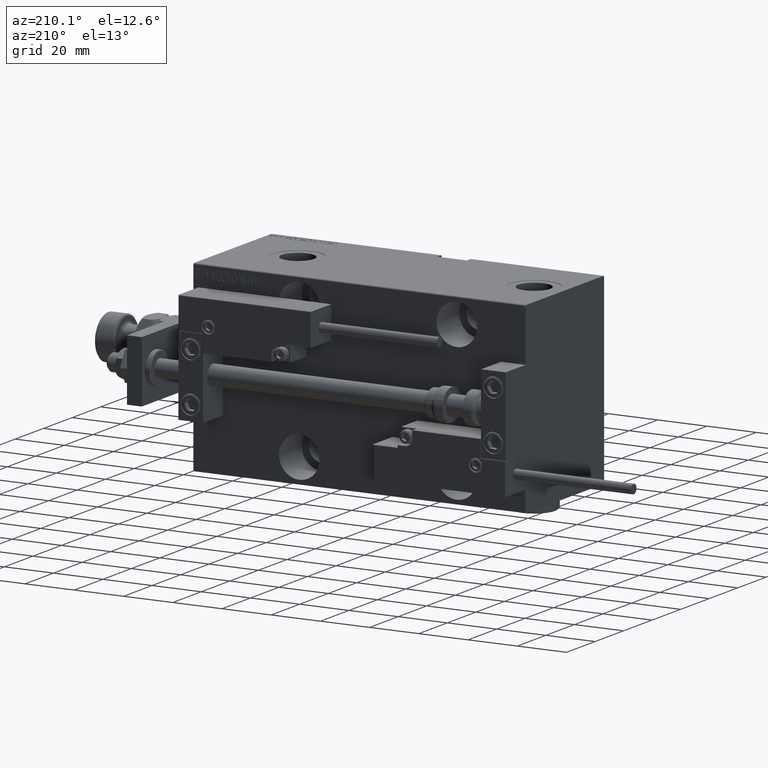
[diagram: clean part render]
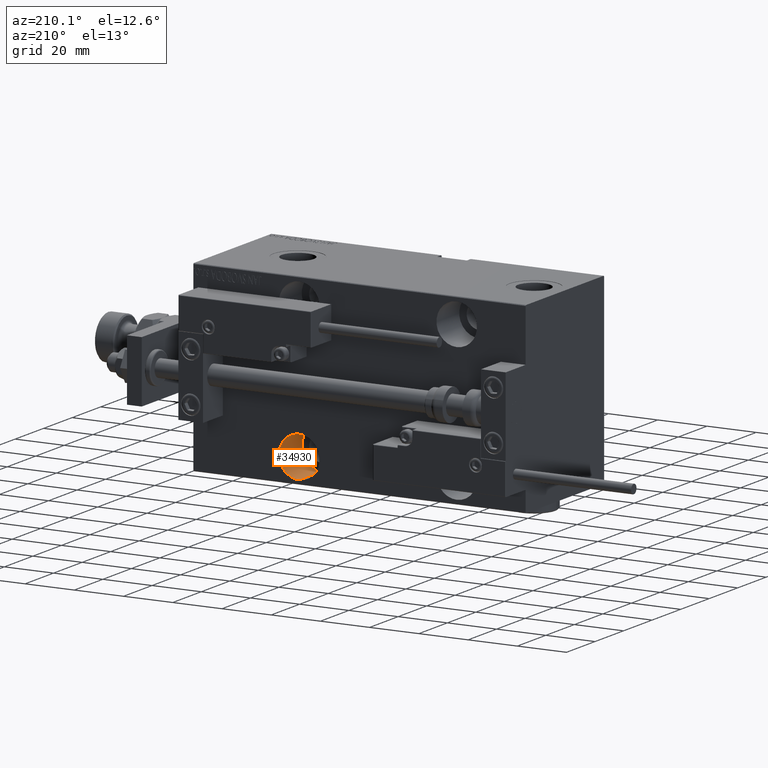
[diagram: same view with one face highlighted and labeled with its STEP entity id]
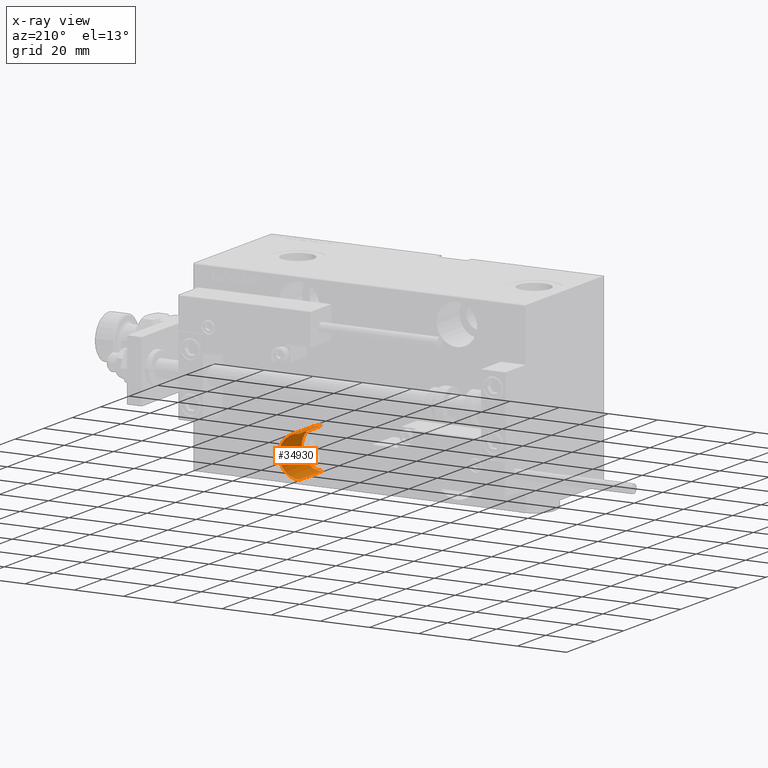
[diagram: x-ray of the same camera — body ghosted, the highlighted face saturated]
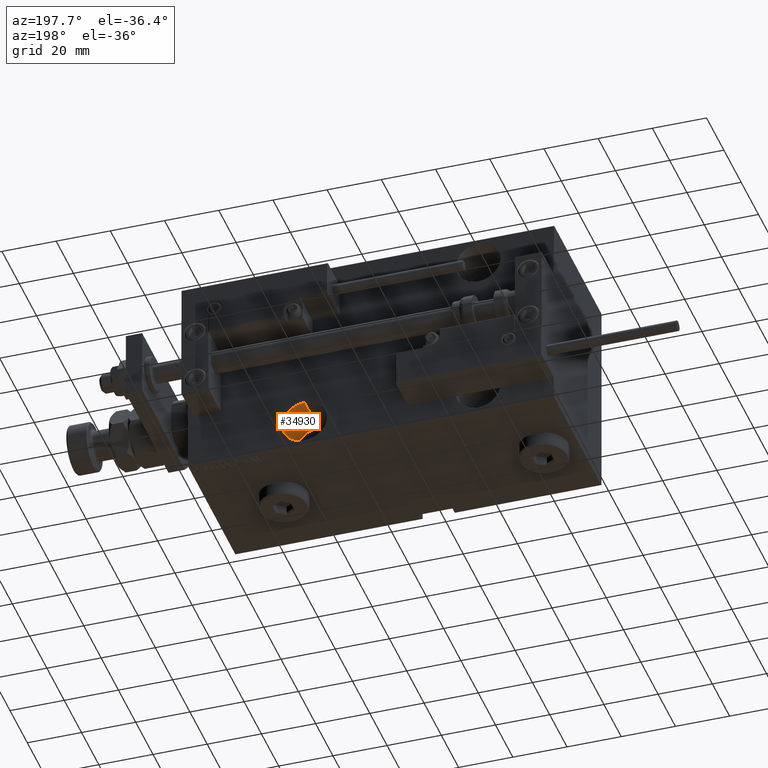
[diagram: same view with one face highlighted and labeled with its STEP entity id]
A machine part, auxiliary view. The second image highlights one B-rep face of the part: STEP entity #34930.
The next image is the same camera in x-ray: the body ghosted, the highlighted face saturated — about 0% of this face is hidden behind the body in this view.
A second angle (auxiliary view) of the same face is appended — the face is thin or edge-on in the first view.
In plain terms, the highlighted cylindrical surface (edge-blend (fillet) strip) has radius 8.25 mm, axis along (0, 1, -0).
Its self-contained STEP definition (entity closure, byte-faithful):
#2423 = CARTESIAN_POINT ( 'NONE',  ( 43.00000000000000000, -11.50000000000000000, -19.25000000000001066 ) ) ;
#7051 = DIRECTION ( 'NONE',  ( -0.000000000000000000, -1.000000000000000000, -0.000000000000000000 ) ) ;
#7143 = CIRCLE ( 'NONE', #37041, 8.249999999999996447 ) ;
#7197 = DIRECTION ( 'NONE',  ( 0.000000000000000000, -1.000000000000000000, 0.000000000000000000 ) ) ;
#9907 = ORIENTED_EDGE ( 'NONE', *, *, #37433, .T. ) ;
#11835 = CARTESIAN_POINT ( 'NONE',  ( 43.00000000000000000, -11.50000000000000000, -35.75000000000000711 ) ) ;
#12288 = ORIENTED_EDGE ( 'NONE', *, *, #38730, .T. ) ;
#13349 = ORIENTED_EDGE ( 'NONE', *, *, #33812, .F. ) ;
#14978 = VERTEX_POINT ( 'NONE', #11835 ) ;
#15777 = CARTESIAN_POINT ( 'NONE',  ( 43.00000000000000000, -11.50000000000000000, -27.50000000000000711 ) ) ;
#17495 = AXIS2_PLACEMENT_3D ( 'NONE', #31379, #19893, #23087 ) ;
#18478 = CARTESIAN_POINT ( 'NONE',  ( 43.00000000000000000, -11.50000000000000000, -35.75000000000000711 ) ) ;
#18824 = LINE ( 'NONE', #22828, #20959 ) ;
#19893 = DIRECTION ( 'NONE',  ( -0.000000000000000000, -1.000000000000000000, -0.000000000000000000 ) ) ;
#20959 = VECTOR ( 'NONE', #7051, 1000.000000000000000 ) ;
#22483 = LINE ( 'NONE', #18478, #35886 ) ;
#22557 = FACE_OUTER_BOUND ( 'NONE', #49194, .T. ) ;
#22828 = CARTESIAN_POINT ( 'NONE',  ( 43.00000000000000000, -11.50000000000000000, -19.25000000000001066 ) ) ;
#22970 = DIRECTION ( 'NONE',  ( 0.000000000000000000, 0.000000000000000000, -1.000000000000000000 ) ) ;
#23087 = DIRECTION ( 'NONE',  ( 0.000000000000000000, 0.000000000000000000, -1.000000000000000000 ) ) ;
#25462 = VERTEX_POINT ( 'NONE', #31098 ) ;
#31098 = CARTESIAN_POINT ( 'NONE',  ( 43.00000000000000000, -27.50000000000000000, -35.75000000000000711 ) ) ;
#31379 = CARTESIAN_POINT ( 'NONE',  ( 43.00000000000000000, -11.50000000000000000, -27.50000000000000711 ) ) ;
#32782 = CARTESIAN_POINT ( 'NONE',  ( 43.00000000000000000, -27.50000000000000000, -19.25000000000001066 ) ) ;
#32875 = DIRECTION ( 'NONE',  ( 0.000000000000000000, 0.000000000000000000, -1.000000000000000000 ) ) ;
#33812 = EDGE_CURVE ( 'NONE', #41356, #14978, #7143, .T. ) ;
#34652 = CIRCLE ( 'NONE', #48349, 8.249999999999996447 ) ;
#34789 = DIRECTION ( 'NONE',  ( -0.000000000000000000, -1.000000000000000000, -0.000000000000000000 ) ) ;
#34930 = ADVANCED_FACE ( 'NONE', ( #22557 ), #47704, .F. ) ;
#35288 = CARTESIAN_POINT ( 'NONE',  ( 43.00000000000000000, -27.50000000000000000, -27.50000000000000711 ) ) ;
#35783 = VERTEX_POINT ( 'NONE', #32782 ) ;
#35886 = VECTOR ( 'NONE', #34789, 1000.000000000000000 ) ;
#37041 = AXIS2_PLACEMENT_3D ( 'NONE', #15777, #52683, #32875 ) ;
#37433 = EDGE_CURVE ( 'NONE', #41356, #35783, #18824, .T. ) ;
#38730 = EDGE_CURVE ( 'NONE', #35783, #25462, #34652, .T. ) ;
#41356 = VERTEX_POINT ( 'NONE', #2423 ) ;
#47013 = ORIENTED_EDGE ( 'NONE', *, *, #51240, .F. ) ;
#47704 = CYLINDRICAL_SURFACE ( 'NONE', #17495, 8.249999999999996447 ) ;
#48349 = AXIS2_PLACEMENT_3D ( 'NONE', #35288, #7197, #22970 ) ;
#49194 = EDGE_LOOP ( 'NONE', ( #13349, #9907, #12288, #47013 ) ) ;
#51240 = EDGE_CURVE ( 'NONE', #14978, #25462, #22483, .T. ) ;
#52683 = DIRECTION ( 'NONE',  ( 0.000000000000000000, -1.000000000000000000, 0.000000000000000000 ) ) ;